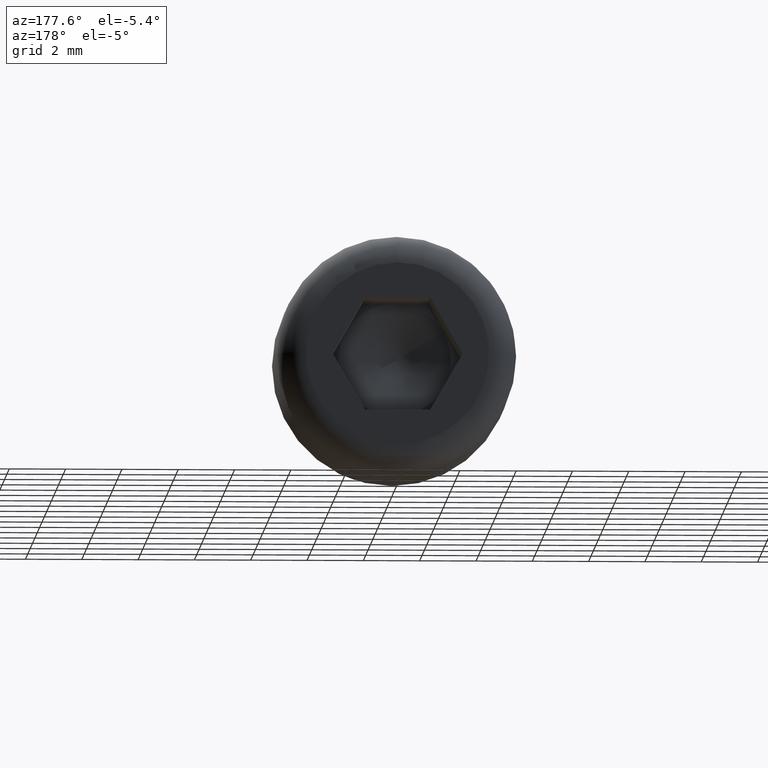
[diagram: clean part render]
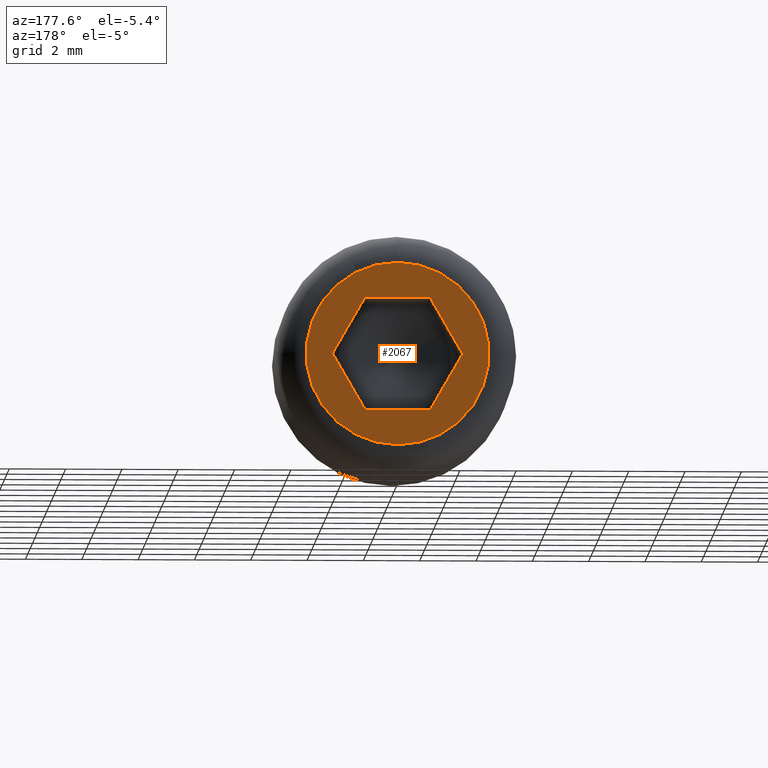
[diagram: same view with one face highlighted and labeled with its STEP entity id]
A machine part, auxiliary view. The second image highlights one B-rep face of the part: STEP entity #2067.
In plain terms, the highlighted planar face has unit normal (0, 1, 0).
Its self-contained STEP definition (entity closure, byte-faithful):
#640 = DIRECTION ( 'NONE',  ( 0.0000000000000000000, 0.0000000000000000000, 1.000000000000000000 ) ) ;
#708 = CARTESIAN_POINT ( 'NONE',  ( 0.0000000000000000000, 5.000000000000000000, 0.0000000000000000000 ) ) ;
#1040 = CARTESIAN_POINT ( 'NONE',  ( 1.154700538379251200, 5.000000000000000000, 2.000000000000000000 ) ) ;
#1651 = VERTEX_POINT ( 'NONE', #8169 ) ;
#1722 = EDGE_LOOP ( 'NONE', ( #3156, #10655, #14237, #3109, #2173, #8577 ) ) ;
#2025 = DIRECTION ( 'NONE',  ( 1.000000000000000000, 0.0000000000000000000, 0.0000000000000000000 ) ) ;
#2067 = ADVANCED_FACE ( 'NONE', ( #11641, #11450 ), #14630, .T. ) ;
#2173 = ORIENTED_EDGE ( 'NONE', *, *, #7455, .F. ) ;
#2723 = LINE ( 'NONE', #14970, #14097 ) ;
#2855 = VERTEX_POINT ( 'NONE', #3562 ) ;
#3041 = EDGE_CURVE ( 'NONE', #4561, #5871, #7456, .T. ) ;
#3109 = ORIENTED_EDGE ( 'NONE', *, *, #3041, .F. ) ;
#3141 = CARTESIAN_POINT ( 'NONE',  ( 2.309401076758503400, 5.000000000000000000, 2.611059807007824700E-016 ) ) ;
#3156 = ORIENTED_EDGE ( 'NONE', *, *, #3808, .F. ) ;
#3562 = CARTESIAN_POINT ( 'NONE',  ( -1.154700538379251000, 5.000000000000000000, 2.000000000000000000 ) ) ;
#3808 = EDGE_CURVE ( 'NONE', #2855, #14661, #10708, .T. ) ;
#4284 = EDGE_LOOP ( 'NONE', ( #9023 ) ) ;
#4332 = LINE ( 'NONE', #11205, #10096 ) ;
#4561 = VERTEX_POINT ( 'NONE', #4857 ) ;
#4653 = CARTESIAN_POINT ( 'NONE',  ( -1.154700538379251700, 5.000000000000000000, -1.999999999999999600 ) ) ;
#4857 = CARTESIAN_POINT ( 'NONE',  ( 1.154700538379251200, 5.000000000000000000, -1.999999999999999600 ) ) ;
#5252 = DIRECTION ( 'NONE',  ( 0.0000000000000000000, 1.000000000000000000, 0.0000000000000000000 ) ) ;
#5315 = DIRECTION ( 'NONE',  ( -1.000000000000000000, 0.0000000000000000000, 0.0000000000000000000 ) ) ;
#5736 = DIRECTION ( 'NONE',  ( 0.5000000000000002200, 0.0000000000000000000, 0.8660254037844386000 ) ) ;
#5871 = VERTEX_POINT ( 'NONE', #7921 ) ;
#6202 = VECTOR ( 'NONE', #5315, 1000.000000000000000 ) ;
#6410 = CARTESIAN_POINT ( 'NONE',  ( 1.154700538379251200, 5.000000000000000000, -1.999999999999999600 ) ) ;
#6555 = DIRECTION ( 'NONE',  ( 0.0000000000000000000, -0.0000000000000000000, 1.000000000000000000 ) ) ;
#6685 = EDGE_CURVE ( 'NONE', #14661, #10916, #4332, .T. ) ;
#7437 = VECTOR ( 'NONE', #2025, 1000.000000000000000 ) ;
#7455 = EDGE_CURVE ( 'NONE', #10916, #4561, #11007, .T. ) ;
#7456 = LINE ( 'NONE', #6410, #6202 ) ;
#7921 = CARTESIAN_POINT ( 'NONE',  ( -1.154700538379251700, 5.000000000000000000, -1.999999999999999600 ) ) ;
#8169 = CARTESIAN_POINT ( 'NONE',  ( 0.0000000000000000000, 5.000000000000000000, 3.250000000000000400 ) ) ;
#8577 = ORIENTED_EDGE ( 'NONE', *, *, #6685, .F. ) ;
#9023 = ORIENTED_EDGE ( 'NONE', *, *, #9978, .T. ) ;
#9379 = CARTESIAN_POINT ( 'NONE',  ( -2.309401076758503400, 5.000000000000000000, -4.440650973077132600E-016 ) ) ;
#9849 = EDGE_CURVE ( 'NONE', #5871, #13425, #14242, .T. ) ;
#9978 = EDGE_CURVE ( 'NONE', #1651, #1651, #11315, .T. ) ;
#10096 = VECTOR ( 'NONE', #13593, 1000.000000000000200 ) ;
#10655 = ORIENTED_EDGE ( 'NONE', *, *, #13540, .F. ) ;
#10708 = LINE ( 'NONE', #12415, #7437 ) ;
#10916 = VERTEX_POINT ( 'NONE', #14608 ) ;
#11007 = LINE ( 'NONE', #3141, #12633 ) ;
#11202 = DIRECTION ( 'NONE',  ( -0.5000000000000002200, 0.0000000000000000000, -0.8660254037844384900 ) ) ;
#11205 = CARTESIAN_POINT ( 'NONE',  ( 1.154700538379251200, 5.000000000000000000, 2.000000000000000000 ) ) ;
#11315 = CIRCLE ( 'NONE', #12081, 3.250000000000000400 ) ;
#11450 = FACE_OUTER_BOUND ( 'NONE', #4284, .T. ) ;
#11641 = FACE_BOUND ( 'NONE', #1722, .T. ) ;
#12081 = AXIS2_PLACEMENT_3D ( 'NONE', #13115, #5252, #640 ) ;
#12297 = DIRECTION ( 'NONE',  ( 0.0000000000000000000, 1.000000000000000000, 0.0000000000000000000 ) ) ;
#12415 = CARTESIAN_POINT ( 'NONE',  ( -1.154700538379251000, 5.000000000000000000, 2.000000000000000000 ) ) ;
#12508 = DIRECTION ( 'NONE',  ( -0.5000000000000002200, 0.0000000000000000000, 0.8660254037844384900 ) ) ;
#12633 = VECTOR ( 'NONE', #11202, 1000.000000000000100 ) ;
#13115 = CARTESIAN_POINT ( 'NONE',  ( 0.0000000000000000000, 5.000000000000000000, 0.0000000000000000000 ) ) ;
#13425 = VERTEX_POINT ( 'NONE', #9379 ) ;
#13540 = EDGE_CURVE ( 'NONE', #13425, #2855, #2723, .T. ) ;
#13593 = DIRECTION ( 'NONE',  ( 0.5000000000000002200, 0.0000000000000000000, -0.8660254037844384900 ) ) ;
#13800 = AXIS2_PLACEMENT_3D ( 'NONE', #708, #12297, #6555 ) ;
#14097 = VECTOR ( 'NONE', #5736, 999.9999999999998900 ) ;
#14237 = ORIENTED_EDGE ( 'NONE', *, *, #9849, .F. ) ;
#14242 = LINE ( 'NONE', #4653, #14407 ) ;
#14407 = VECTOR ( 'NONE', #12508, 1000.000000000000100 ) ;
#14608 = CARTESIAN_POINT ( 'NONE',  ( 2.309401076758503400, 5.000000000000000000, 2.611059807007824700E-016 ) ) ;
#14630 = PLANE ( 'NONE',  #13800 ) ;
#14661 = VERTEX_POINT ( 'NONE', #1040 ) ;
#14970 = CARTESIAN_POINT ( 'NONE',  ( -2.309401076758503400, 5.000000000000000000, -4.440650973077132600E-016 ) ) ;